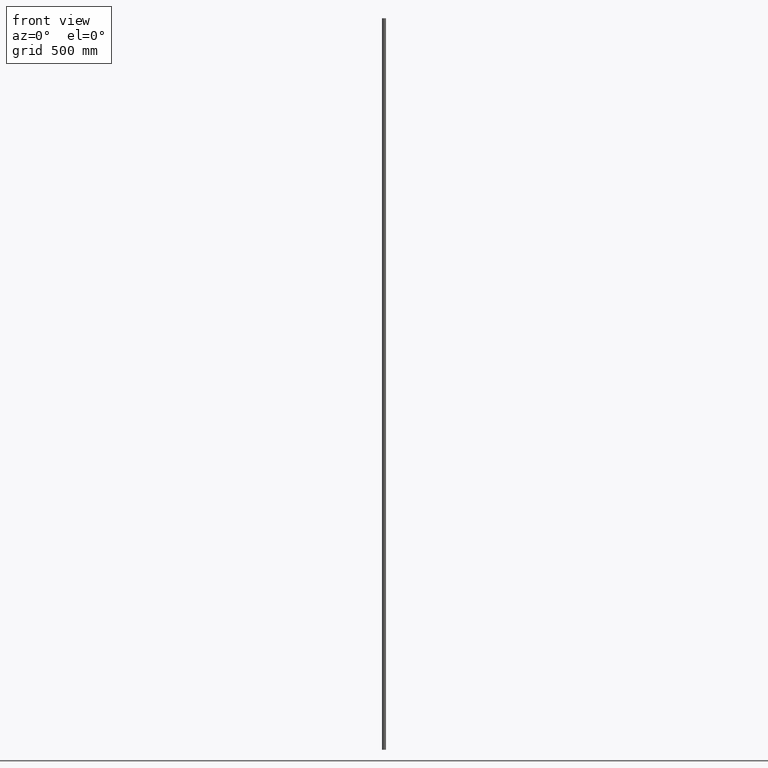
[diagram: clean part render]
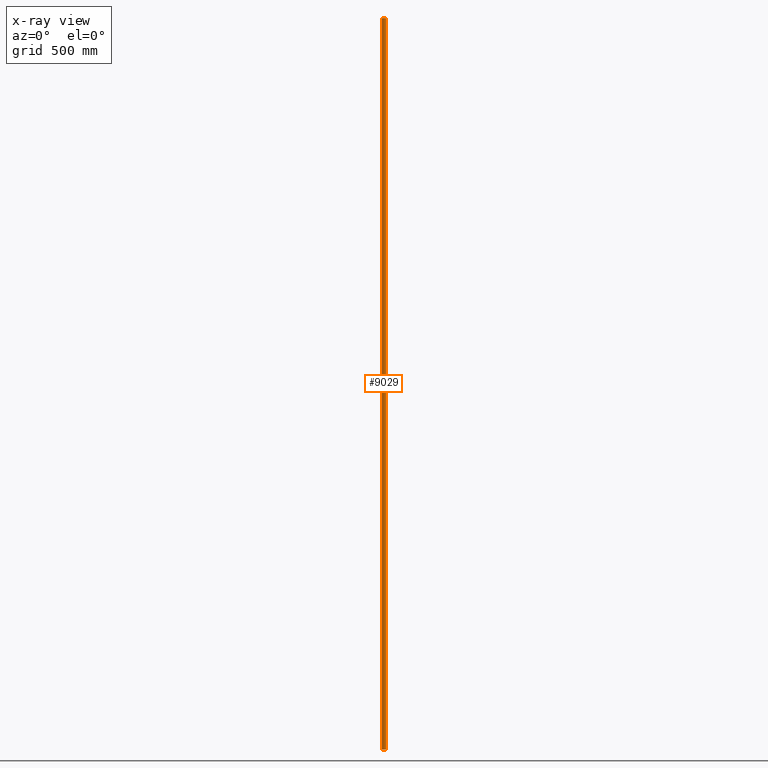
[diagram: x-ray — body ghosted, one internal face saturated and labeled with its STEP entity id]
A machine part, front view, then the same camera in x-ray: the body is ghosted and one INTERNAL B-rep face — a face not visible from any outside direction — is saturated and labeled: STEP entity #9029.
In plain terms, the highlighted cylindrical surface (bore or boss wall) has radius 8 mm, axis along (-0, -0, -1).
Its self-contained STEP definition (entity closure, byte-faithful):
#1496 = DIRECTION ( 'NONE',  ( 0.000000000000000000, 0.000000000000000000, 1.000000000000000000 ) ) ;
#1550 = DIRECTION ( 'NONE',  ( 1.000000000000000000, 0.000000000000000000, 0.000000000000000000 ) ) ;
#2104 = EDGE_CURVE ( 'NONE', #7638, #7638, #3097, .T. ) ;
#3097 = CIRCLE ( 'NONE', #3328, 8.000000000000000000 ) ;
#3328 = AXIS2_PLACEMENT_3D ( 'NONE', #4687, #1496, #1550 ) ;
#4081 = CARTESIAN_POINT ( 'NONE',  ( 0.000000000000000000, 0.000000000000000000, 1500.000000000000000 ) ) ;
#4687 = CARTESIAN_POINT ( 'NONE',  ( 0.000000000000000000, 0.000000000000000000, -1500.000000000000000 ) ) ;
#5142 = CARTESIAN_POINT ( 'NONE',  ( 8.000000000000000000, 0.000000000000000000, 1500.000000000000000 ) ) ;
#5148 = CARTESIAN_POINT ( 'NONE',  ( 0.000000000000000000, 0.000000000000000000, 1500.000000000000000 ) ) ;
#6393 = DIRECTION ( 'NONE',  ( -0.000000000000000000, -0.000000000000000000, -1.000000000000000000 ) ) ;
#6780 = FACE_OUTER_BOUND ( 'NONE', #7733, .T. ) ;
#7296 = ORIENTED_EDGE ( 'NONE', *, *, #9833, .F. ) ;
#7638 = VERTEX_POINT ( 'NONE', #12254 ) ;
#7733 = EDGE_LOOP ( 'NONE', ( #7296 ) ) ;
#8753 = DIRECTION ( 'NONE',  ( 1.000000000000000000, 0.000000000000000000, 0.000000000000000000 ) ) ;
#9029 = ADVANCED_FACE ( 'NONE', ( #6780, #12043 ), #12215, .T. ) ;
#9455 = ORIENTED_EDGE ( 'NONE', *, *, #2104, .T. ) ;
#9833 = EDGE_CURVE ( 'NONE', #11974, #11974, #12571, .T. ) ;
#10400 = EDGE_LOOP ( 'NONE', ( #9455 ) ) ;
#11974 = VERTEX_POINT ( 'NONE', #5142 ) ;
#12043 = FACE_OUTER_BOUND ( 'NONE', #10400, .T. ) ;
#12152 = DIRECTION ( 'NONE',  ( -1.000000000000000000, 0.000000000000000000, 0.000000000000000000 ) ) ;
#12215 = CYLINDRICAL_SURFACE ( 'NONE', #12950, 8.000000000000000000 ) ;
#12254 = CARTESIAN_POINT ( 'NONE',  ( 8.000000000000000000, 0.000000000000000000, -1500.000000000000000 ) ) ;
#12374 = AXIS2_PLACEMENT_3D ( 'NONE', #5148, #13217, #8753 ) ;
#12571 = CIRCLE ( 'NONE', #12374, 8.000000000000000000 ) ;
#12950 = AXIS2_PLACEMENT_3D ( 'NONE', #4081, #6393, #12152 ) ;
#13217 = DIRECTION ( 'NONE',  ( 0.000000000000000000, 0.000000000000000000, 1.000000000000000000 ) ) ;